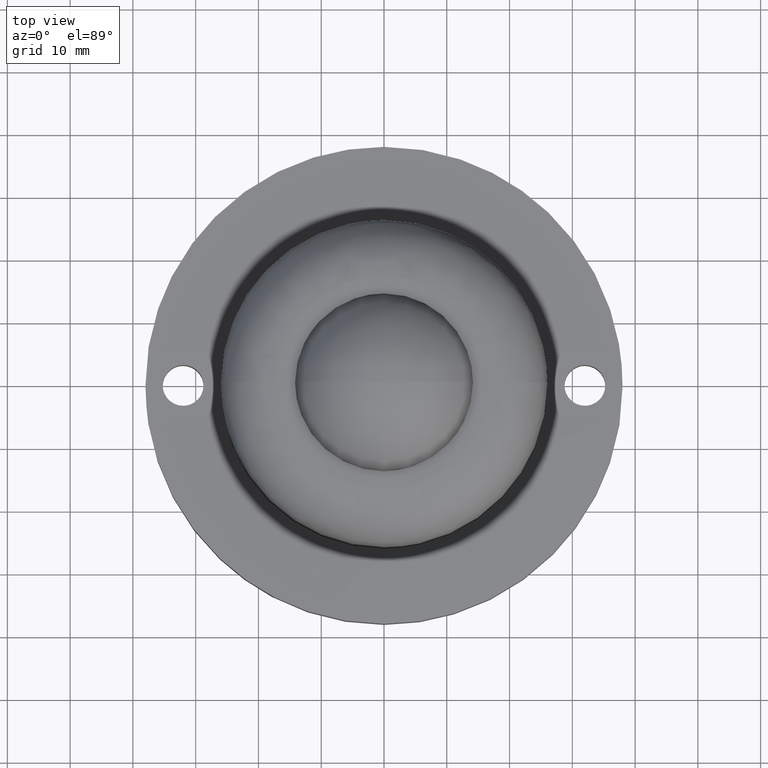
[diagram: clean part render]
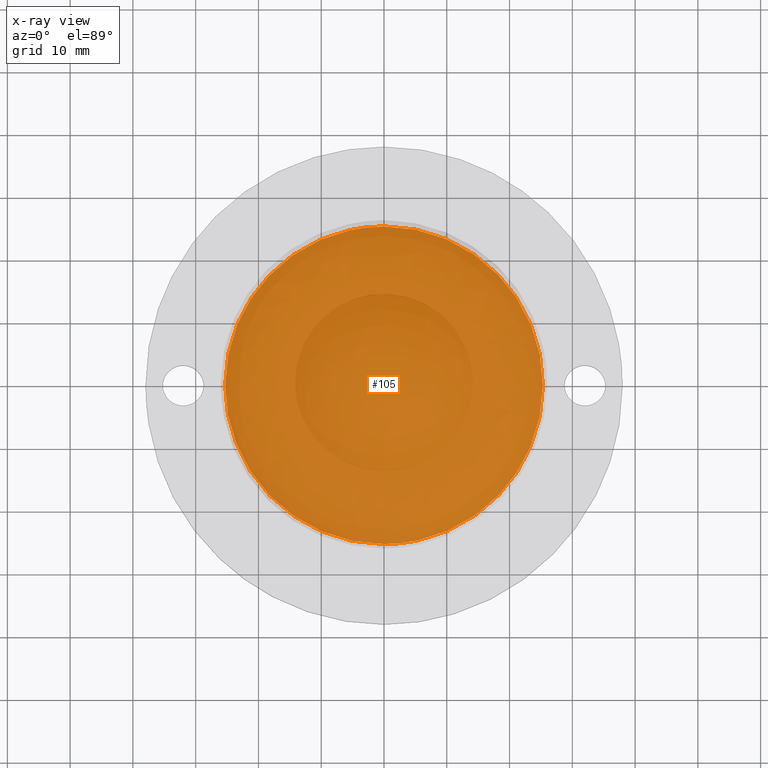
[diagram: x-ray — body ghosted, one internal face saturated and labeled with its STEP entity id]
A machine part, top view, then the same camera in x-ray: the body is ghosted and one INTERNAL B-rep face — a face not visible from any outside direction — is saturated and labeled: STEP entity #105.
In plain terms, the highlighted face is a freeform B-spline surface patch.
Its self-contained STEP definition (entity closure, byte-faithful):
#5=CARTESIAN_POINT('',(27.827469901927380,-27.827469901927369,10.0));
#6=CARTESIAN_POINT('',(-27.827471259125140,-27.827469901927369,10.0));
#7=CARTESIAN_POINT('',(27.827469901927380,27.827471259125119,10.0));
#8=CARTESIAN_POINT('',(-27.827471259125140,27.827471259125119,10.0));
#9=B_SPLINE_SURFACE_WITH_KNOTS('',1,1,((#5,#7),(#6,#8)),.UNSPECIFIED.,.F.,.F.,.U.,(2,2),(2,2),(0.0,55.654941161052520),(0.0,55.654941161052491),.UNSPECIFIED.);
#10=CARTESIAN_POINT('',(-0.000000950620792,-25.299999999999979,10.0));
#11=VERTEX_POINT('',#10);
#12=CARTESIAN_POINT('',(-25.300000000000001,0.0,10.0));
#13=VERTEX_POINT('',#12);
#14=CARTESIAN_POINT('',(-0.000000950620792,-25.299999999999979,10.0));
#15=CARTESIAN_POINT('',(-1.759397200426588,-25.300244646044199,10.000000000000011));
#16=CARTESIAN_POINT('',(-4.450082537767584,-25.018165910092851,9.999999999999993));
#17=CARTESIAN_POINT('',(-8.152426112965925,-24.017879529992470,10.0));
#18=CARTESIAN_POINT('',(-11.419019430945051,-22.688377317614570,10.000000000000080));
#19=CARTESIAN_POINT('',(-14.671046188432960,-20.739182327300711,9.999999999999812));
#20=CARTESIAN_POINT('',(-17.456677469351039,-18.409715950252970,10.000000000000320));
#21=CARTESIAN_POINT('',(-19.460866313815082,-16.238873777272630,10.000000000000080));
#22=CARTESIAN_POINT('',(-21.134079040146279,-13.997230290501230,10.000000000000050));
#23=CARTESIAN_POINT('',(-22.453060264346849,-11.765702792636290,9.999999999999410));
#24=CARTESIAN_POINT('',(-23.738698242638151,-8.935992498716100,10.000000000000920));
#25=CARTESIAN_POINT('',(-24.934005770418050,-5.122740631855909,9.999999999998895));
#26=CARTESIAN_POINT('',(-25.300392059394170,-1.914642604604676,10.000000000000920));
#27=CARTESIAN_POINT('',(-25.300000000000001,0.0,10.0));
#28=B_SPLINE_CURVE_WITH_KNOTS('',3,(#14,#15,#16,#17,#18,#19,#20,#21,#22,#23,#24,#25,#26,#27),.UNSPECIFIED.,.F.,.U.,(4,1,1,1,1,1,1,1,1,1,1,4),(0.000000046764981,5.278125683762447,8.072430467602452,11.487696706922460,15.834413231817081,19.404918625601660,22.354424327949609,24.683016545437411,27.787790223374419,30.116386903667390,33.997368972830728,39.741208874449697),.UNSPECIFIED.);
#29=EDGE_CURVE('',#11,#13,#28,.T.);
#30=ORIENTED_EDGE('',*,*,#29,.F.);
#31=CARTESIAN_POINT('',(18.351971423934561,-17.415370591699059,10.0));
#32=VERTEX_POINT('',#31);
#33=CARTESIAN_POINT('',(18.351971423934561,-17.415370591699059,10.0));
#34=CARTESIAN_POINT('',(17.579034910999940,-18.229895419761970,10.000000000000011));
#35=CARTESIAN_POINT('',(15.688197373810940,-19.973924340929120,9.999999999999984));
#36=CARTESIAN_POINT('',(12.795082141137611,-21.922878717479261,10.0));
#37=CARTESIAN_POINT('',(9.521540633070851,-23.517672976437030,9.999999999999979));
#38=CARTESIAN_POINT('',(6.775829414493346,-24.437814148333629,10.000000000000011));
#39=CARTESIAN_POINT('',(3.475593840814280,-25.127666035150689,10.000000000000020));
#40=CARTESIAN_POINT('',(1.390256328838922,-25.300096230563991,9.999999999999981));
#41=CARTESIAN_POINT('',(-0.000000950620792,-25.299999999999979,10.0));
#42=B_SPLINE_CURVE_WITH_KNOTS('',3,(#33,#34,#35,#36,#37,#38,#39,#40,#41),.UNSPECIFIED.,.F.,.U.,(4,1,1,1,1,1,4),(0.000000013586032,3.368687046432203,7.699870411561980,10.426879343946760,14.276822133120721,16.362204791057760,20.532961246473029),.UNSPECIFIED.);
#43=EDGE_CURVE('',#32,#11,#42,.T.);
#44=ORIENTED_EDGE('',*,*,#43,.F.);
#45=CARTESIAN_POINT('',(25.300000000000001,0.0,10.0));
#46=VERTEX_POINT('',#45);
#47=CARTESIAN_POINT('',(25.300000000000001,0.0,10.0));
#48=CARTESIAN_POINT('',(25.300258378804980,-1.750776502433632,9.999999999999988));
#49=CARTESIAN_POINT('',(25.028893392454918,-4.351771083103325,10.000000000000011));
#50=CARTESIAN_POINT('',(24.095853306983880,-7.886931998637188,10.000000000000011));
#51=CARTESIAN_POINT('',(22.879501775645000,-11.016843852492000,9.999999999999963));
#52=CARTESIAN_POINT('',(20.986808604566619,-14.330029368366571,10.000000000000069));
#53=CARTESIAN_POINT('',(19.247265478255851,-16.472026685963449,9.999999999999949));
#54=CARTESIAN_POINT('',(18.351971423934561,-17.415370591699059,10.0));
#55=B_SPLINE_CURVE_WITH_KNOTS('',3,(#47,#48,#49,#50,#51,#52,#53,#54),.UNSPECIFIED.,.F.,.U.,(4,1,1,1,1,4),(0.000000013329146,5.252257506150217,7.803364507247457,10.954690671459320,15.306576778626249,19.208249135781159),.UNSPECIFIED.);
#56=EDGE_CURVE('',#46,#32,#55,.T.);
#57=ORIENTED_EDGE('',*,*,#56,.F.);
#58=CARTESIAN_POINT('',(0.000000950621388,25.299999999999979,10.0));
#59=VERTEX_POINT('',#58);
#60=CARTESIAN_POINT('',(0.000000950621388,25.299999999999979,10.0));
#61=CARTESIAN_POINT('',(1.448902878999739,25.300146122364360,10.000000000000011));
#62=CARTESIAN_POINT('',(3.415206732765913,25.130594528784961,10.000000000000011));
#63=CARTESIAN_POINT('',(6.457995826391745,24.505931078572061,9.999999999999968));
#64=CARTESIAN_POINT('',(8.934886680327415,23.737957610697929,10.000000000000091));
#65=CARTESIAN_POINT('',(11.533585934542330,22.566845827129370,10.000000000000020));
#66=CARTESIAN_POINT('',(14.134039123325380,21.061999079516639,9.999999999999670));
#67=CARTESIAN_POINT('',(16.866408131955350,18.996358089950359,10.000000000000551));
#68=CARTESIAN_POINT('',(19.460155420146162,16.305237794935490,9.999999999999867));
#69=CARTESIAN_POINT('',(21.758951010335959,13.104268222509750,10.000000000000099));
#70=CARTESIAN_POINT('',(23.215997827632219,10.231702513613209,10.000000000000220));
#71=CARTESIAN_POINT('',(24.227658495151349,7.403873608515138,10.000000000000140));
#72=CARTESIAN_POINT('',(25.036997920656820,4.294852559896830,9.999999999999588));
#73=CARTESIAN_POINT('',(25.300274399675828,1.707650016666202,10.000000000000581));
#74=CARTESIAN_POINT('',(25.300000000000001,0.0,10.0));
#75=B_SPLINE_CURVE_WITH_KNOTS('',3,(#60,#61,#62,#63,#64,#65,#66,#67,#68,#69,#70,#71,#72,#73,#74),.UNSPECIFIED.,.F.,.U.,(4,1,1,1,1,1,1,1,1,1,1,1,4),(0.000000046806569,4.346670708330720,5.899078478324391,9.314345481035119,12.108651314409769,14.437237808749449,18.318249813313141,22.354424327970179,25.614434101435009,30.116386903678642,31.979264047426419,34.618324723121212,39.741208874449157),.UNSPECIFIED.);
#76=EDGE_CURVE('',#59,#46,#75,.T.);
#77=ORIENTED_EDGE('',*,*,#76,.F.);
#78=CARTESIAN_POINT('',(-18.351971423934451,17.415370591698959,10.0));
#79=VERTEX_POINT('',#78);
#80=CARTESIAN_POINT('',(-18.351971423934451,17.415370591698959,10.0));
#81=CARTESIAN_POINT('',(-17.431859596257571,18.385106810389679,10.000000000000011));
#82=CARTESIAN_POINT('',(-15.756480042966110,19.891228651214760,9.999999999999984));
#83=CARTESIAN_POINT('',(-12.970563304510399,21.793785522702361,10.000000000000011));
#84=CARTESIAN_POINT('',(-9.783704770059963,23.447835480237639,10.000000000000041));
#85=CARTESIAN_POINT('',(-6.470782254817006,24.546401365192619,9.999999999999973));
#86=CARTESIAN_POINT('',(-3.047838225016367,25.171601217121410,10.0));
#87=CARTESIAN_POINT('',(-1.122895353141416,25.300049015884500,10.000000000000011));
#88=CARTESIAN_POINT('',(0.000000950621388,25.299999999999979,10.0));
#89=B_SPLINE_CURVE_WITH_KNOTS('',3,(#80,#81,#82,#83,#84,#85,#86,#87,#88),.UNSPECIFIED.,.F.,.U.,(4,1,1,1,1,1,4),(0.000000013588735,4.010344136505871,6.737379200904055,10.106081578420650,14.758063181962340,17.164275061086670,20.532961246473558),.UNSPECIFIED.);
#90=EDGE_CURVE('',#79,#59,#89,.T.);
#91=ORIENTED_EDGE('',*,*,#90,.F.);
#92=CARTESIAN_POINT('',(-25.300000000000001,0.0,10.0));
#93=CARTESIAN_POINT('',(-25.300396916955432,1.900850793295080,10.000000000000020));
#94=CARTESIAN_POINT('',(-24.943086551012229,5.052026462696576,9.999999999999972));
#95=CARTESIAN_POINT('',(-23.803339626119971,8.742277818100101,10.000000000000011));
#96=CARTESIAN_POINT('',(-22.632012988239001,11.399292409332130,9.999999999999984));
#97=CARTESIAN_POINT('',(-21.033593554683922,14.236581688451031,9.999999999999996));
#98=CARTESIAN_POINT('',(-19.453963894471752,16.254398089887118,9.999999999999996));
#99=CARTESIAN_POINT('',(-18.351971423934451,17.415370591698959,10.0));
#100=B_SPLINE_CURVE_WITH_KNOTS('',3,(#92,#93,#94,#95,#96,#97,#98,#99),.UNSPECIFIED.,.F.,.U.,(4,1,1,1,1,4),(0.000000013328137,5.702452217399326,9.454077240300148,11.554955411083199,14.406186855169789,19.208249135781131),.UNSPECIFIED.);
#101=EDGE_CURVE('',#13,#79,#100,.T.);
#102=ORIENTED_EDGE('',*,*,#101,.F.);
#103=EDGE_LOOP('',(#30,#44,#57,#77,#91,#102));
#104=FACE_OUTER_BOUND('',#103,.T.);
#105=ADVANCED_FACE('',(#104),#9,.F.);